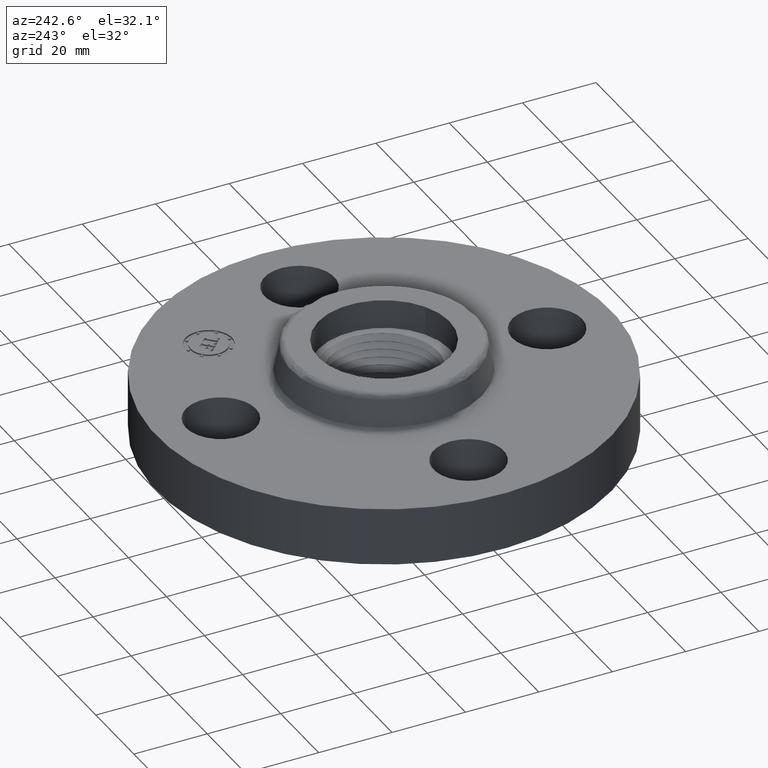
[diagram: clean part render]
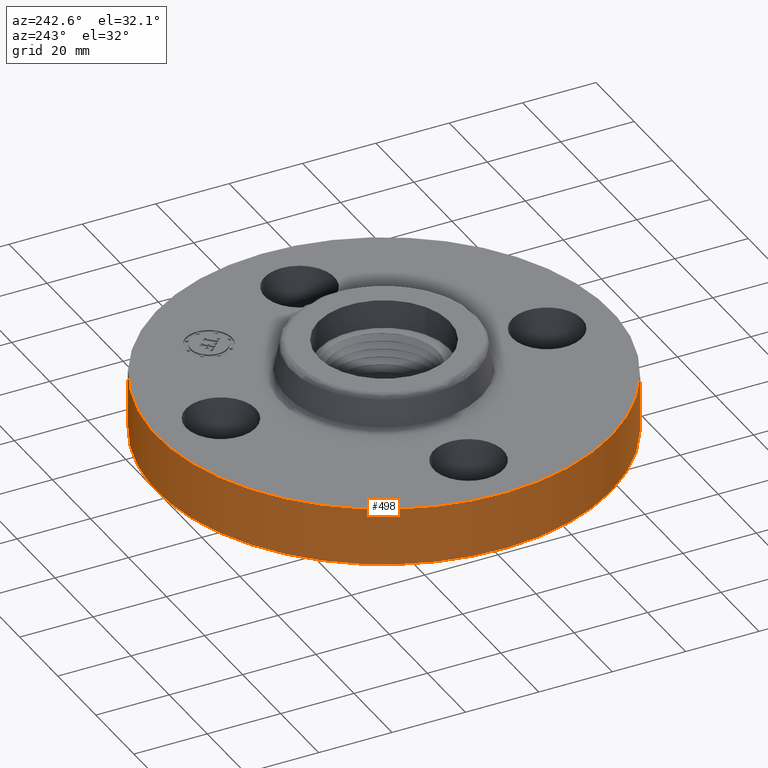
[diagram: same view with one face highlighted and labeled with its STEP entity id]
A machine part, auxiliary view. The second image highlights one B-rep face of the part: STEP entity #498.
In plain terms, the highlighted cylindrical surface (partial cylindrical patch) has radius 61.976 mm, axis along (0, 0, -1).
Its self-contained STEP definition (entity closure, byte-faithful):
#181=AXIS2_PLACEMENT_3D('Circle Axis2P3D',#179,#180,$) ;
#459=AXIS2_PLACEMENT_3D('Cylinder Axis2P3D',#456,#457,#458) ;
#489=AXIS2_PLACEMENT_3D('Circle Axis2P3D',#487,#488,$) ;
#174=CARTESIAN_POINT('Vertex',(1.1697983142,2.14130145102,6.99353086378E-017)) ;
#176=CARTESIAN_POINT('Vertex',(-1.1697983142,-2.14130145102,6.99353086378E-017)) ;
#179=CARTESIAN_POINT('Axis2P3D Location',(0.,0.,0.)) ;
#456=CARTESIAN_POINT('Axis2P3D Location',(0.,0.,0.500000000002)) ;
#461=CARTESIAN_POINT('Line Origine',(1.1697983142,2.14130145102,0.310000000001)) ;
#465=CARTESIAN_POINT('Vertex',(1.1697983142,2.14130145102,0.620000000002)) ;
#472=CARTESIAN_POINT('Vertex',(-1.1697983142,-2.14130145102,0.620000000002)) ;
#475=CARTESIAN_POINT('Line Origine',(-1.1697983142,-2.14130145102,0.310000000001)) ;
#487=CARTESIAN_POINT('Axis2P3D Location',(0.,0.,0.620000000002)) ;
#180=DIRECTION('Axis2P3D Direction',(0.,0.,-0.0393700787402)) ;
#457=DIRECTION('Axis2P3D Direction',(0.,0.,-0.0393700787402)) ;
#458=DIRECTION('Axis2P3D XDirection',(-0.0188750212049,-0.0345504945626,0.)) ;
#462=DIRECTION('Vector Direction',(0.,0.,-0.0393700787402)) ;
#476=DIRECTION('Vector Direction',(0.,0.,-0.0393700787402)) ;
#488=DIRECTION('Axis2P3D Direction',(0.,0.,-0.0393700787402)) ;
#463=VECTOR('Line Direction',#462,0.0393700787402) ;
#477=VECTOR('Line Direction',#476,0.0393700787402) ;
#493=ORIENTED_EDGE('',*,*,#183,.F.) ;
#494=ORIENTED_EDGE('',*,*,#479,.T.) ;
#495=ORIENTED_EDGE('',*,*,#491,.T.) ;
#496=ORIENTED_EDGE('',*,*,#467,.F.) ;
#498=ADVANCED_FACE('PartBody',(#497),#460,.T.) ;
#182=CIRCLE('generated circle',#181,2.44000000001) ;
#490=CIRCLE('generated circle',#489,2.44000000001) ;
#460=CYLINDRICAL_SURFACE('generated cylinder',#459,2.44000000001) ;
#183=EDGE_CURVE('',#177,#175,#182,.T.) ;
#467=EDGE_CURVE('',#175,#466,#464,.F.) ;
#479=EDGE_CURVE('',#177,#473,#478,.F.) ;
#491=EDGE_CURVE('',#473,#466,#490,.T.) ;
#492=EDGE_LOOP('',(#493,#494,#495,#496)) ;
#497=FACE_OUTER_BOUND('',#492,.T.) ;
#464=LINE('Line',#461,#463) ;
#478=LINE('Line',#475,#477) ;
#175=VERTEX_POINT('',#174) ;
#177=VERTEX_POINT('',#176) ;
#466=VERTEX_POINT('',#465) ;
#473=VERTEX_POINT('',#472) ;